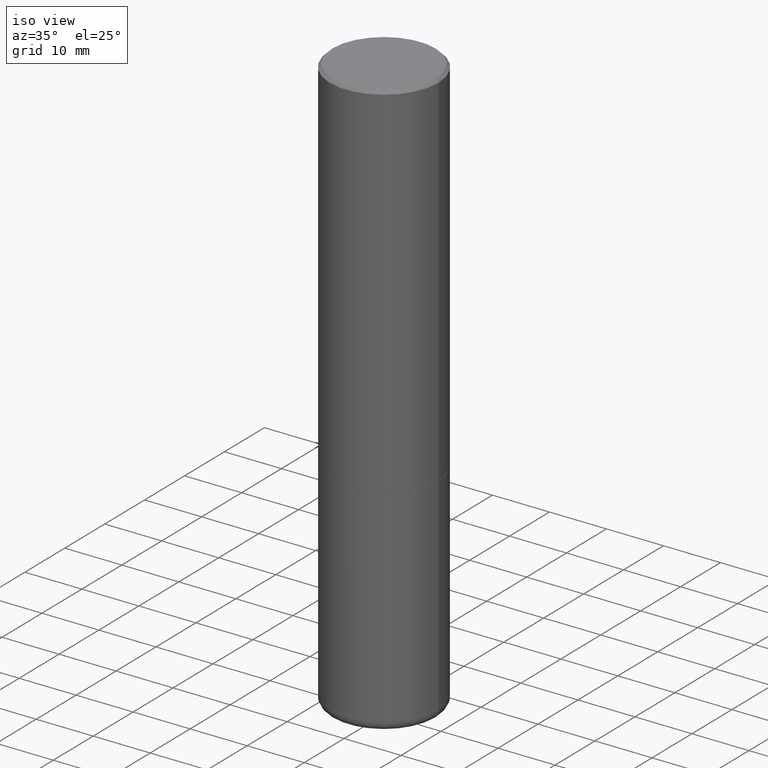
[diagram: clean part render]
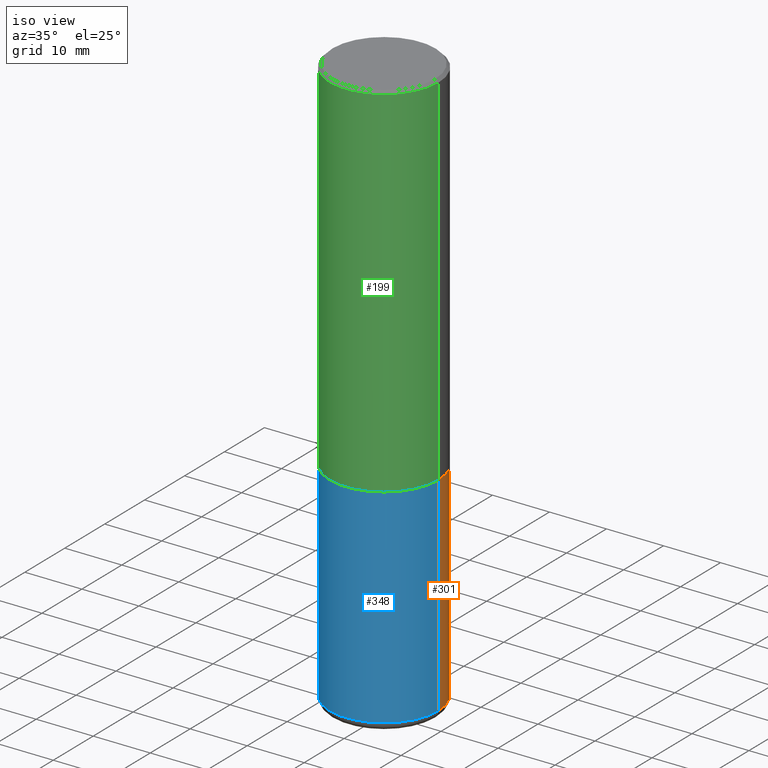
[diagram: same view with three faces highlighted in distinct colors, each labeled with its STEP entity id]
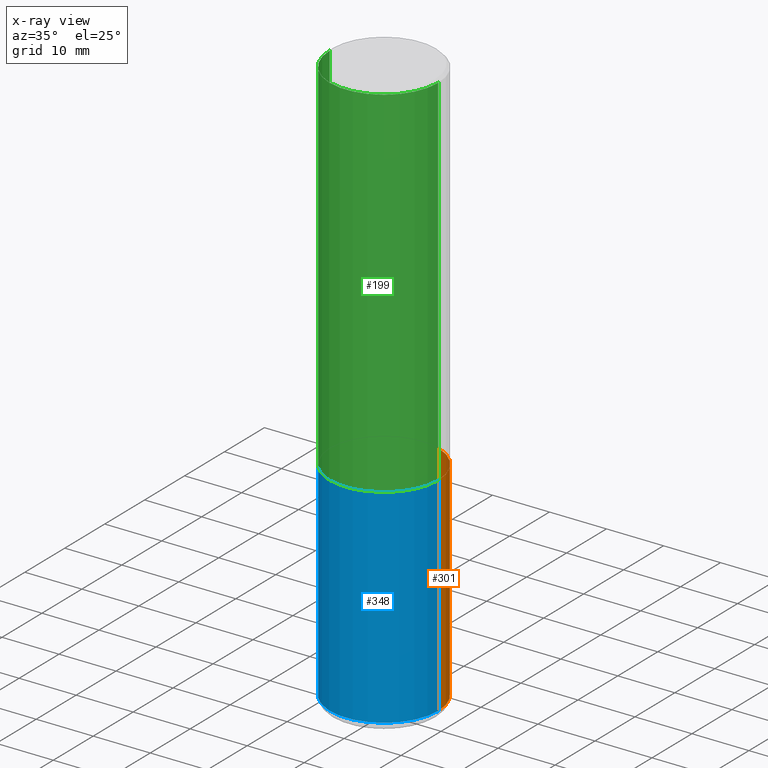
[diagram: x-ray of the same camera — body ghosted, the three highlighted faces saturated]
A machine part, iso view with three faces highlighted in distinct colors.
The next image is the same camera in x-ray (body ghosted, the three faces saturated) — at least one of them is partly hidden behind the body in this view.
Their STEP definitions:

[orange] entity #301 — the highlighted cylindrical surface (partial cylindrical patch) has radius 9.525 mm, axis along (-0, 0, 1).
#3 = CARTESIAN_POINT ( 'NONE',  ( 0.3749999999999999445, -2.618611004132349622E-15, 1.828566290923475642E-29 ) ) ;
#33 = CARTESIAN_POINT ( 'NONE',  ( -0.3749999999999999445, 2.664535259100375303E-15, -1.844600658845589318E-29 ) ) ;
#36 = LINE ( 'NONE', #33, #210 ) ;
#38 = CARTESIAN_POINT ( 'NONE',  ( 0.3750000000000001110, -1.637504747917434403E-14, -3.939999999999999947 ) ) ;
#40 = DIRECTION ( 'NONE',  ( -2.445468806185136597E-29, 3.491481338843145583E-15, 1.000000000000000000 ) ) ;
#54 = VERTEX_POINT ( 'NONE', #270 ) ;
#57 = CARTESIAN_POINT ( 'NONE',  ( 0.000000000000000000, 0.000000000000000000, 0.000000000000000000 ) ) ;
#60 = AXIS2_PLACEMENT_3D ( 'NONE', #127, #40, #226 ) ;
#62 = VERTEX_POINT ( 'NONE', #303 ) ;
#65 = DIRECTION ( 'NONE',  ( -2.445468806185136597E-29, 3.491481338843145583E-15, 1.000000000000000000 ) ) ;
#69 = LINE ( 'NONE', #3, #143 ) ;
#73 = ORIENTED_EDGE ( 'NONE', *, *, #169, .T. ) ;
#86 = AXIS2_PLACEMENT_3D ( 'NONE', #57, #65, #120 ) ;
#120 = DIRECTION ( 'NONE',  ( 1.000000000000000000, -6.982962677686266711E-15, 4.876176775795935793E-29 ) ) ;
#127 = CARTESIAN_POINT ( 'NONE',  ( 6.113672015462842613E-29, -8.728703347107864943E-15, -2.500000000000000000 ) ) ;
#143 = VECTOR ( 'NONE', #389, 39.37007874015748143 ) ;
#145 = ORIENTED_EDGE ( 'NONE', *, *, #384, .F. ) ;
#150 = CARTESIAN_POINT ( 'NONE',  ( -0.3750000000000001110, -1.109190121594161832E-14, -3.939999999999999947 ) ) ;
#151 = ORIENTED_EDGE ( 'NONE', *, *, #221, .F. ) ;
#153 = DIRECTION ( 'NONE',  ( 1.000000000000000000, -6.982962677686269077E-15, 0.000000000000000000 ) ) ;
#162 = AXIS2_PLACEMENT_3D ( 'NONE', #409, #345, #153 ) ;
#169 = EDGE_CURVE ( 'NONE', #319, #62, #36, .T. ) ;
#210 = VECTOR ( 'NONE', #287, 39.37007874015748143 ) ;
#221 = EDGE_CURVE ( 'NONE', #355, #54, #69, .T. ) ;
#226 = DIRECTION ( 'NONE',  ( 1.000000000000000000, -6.982962677686264344E-15, 0.000000000000000000 ) ) ;
#237 = ORIENTED_EDGE ( 'NONE', *, *, #332, .T. ) ;
#246 = CYLINDRICAL_SURFACE ( 'NONE', #86, 0.3749999999999999445 ) ;
#261 = CIRCLE ( 'NONE', #162, 0.3749999999999999445 ) ;
#270 = CARTESIAN_POINT ( 'NONE',  ( 0.3750000000000000555, -1.134731435124021338E-14, -2.500000000000000000 ) ) ;
#287 = DIRECTION ( 'NONE',  ( -2.445468806185136877E-29, 3.491481338843145188E-15, 1.000000000000000000 ) ) ;
#292 = EDGE_LOOP ( 'NONE', ( #237, #73, #145, #151 ) ) ;
#301 = ADVANCED_FACE ( 'NONE', ( #418 ), #246, .T. ) ;
#303 = CARTESIAN_POINT ( 'NONE',  ( -0.3750000000000000555, -8.578034651974553781E-15, -2.500000000000000000 ) ) ;
#319 = VERTEX_POINT ( 'NONE', #150 ) ;
#332 = EDGE_CURVE ( 'NONE', #355, #319, #261, .T. ) ;
#345 = DIRECTION ( 'NONE',  ( -2.445468806185136597E-29, 3.491481338843145583E-15, 1.000000000000000000 ) ) ;
#355 = VERTEX_POINT ( 'NONE', #38 ) ;
#384 = EDGE_CURVE ( 'NONE', #54, #62, #404, .T. ) ;
#389 = DIRECTION ( 'NONE',  ( -2.445468806185136877E-29, 3.491481338843145188E-15, 1.000000000000000000 ) ) ;
#404 = CIRCLE ( 'NONE', #60, 0.3750000000000000555 ) ;
#409 = CARTESIAN_POINT ( 'NONE',  ( 9.635147096369438236E-29, -1.375643647504199401E-14, -3.939999999999999947 ) ) ;
#418 = FACE_OUTER_BOUND ( 'NONE', #292, .T. ) ;

[blue] entity #348 — the highlighted cylindrical surface (partial cylindrical patch) has radius 9.525 mm, axis along (-0, 0, 1).
#1 = ORIENTED_EDGE ( 'NONE', *, *, #37, .T. ) ;
#3 = CARTESIAN_POINT ( 'NONE',  ( 0.3749999999999999445, -2.618611004132349622E-15, 1.828566290923475642E-29 ) ) ;
#21 = DIRECTION ( 'NONE',  ( -2.445468806185136597E-29, 3.491481338843145583E-15, 1.000000000000000000 ) ) ;
#33 = CARTESIAN_POINT ( 'NONE',  ( -0.3749999999999999445, 2.664535259100375303E-15, -1.844600658845589318E-29 ) ) ;
#36 = LINE ( 'NONE', #33, #210 ) ;
#37 = EDGE_CURVE ( 'NONE', #319, #355, #297, .T. ) ;
#38 = CARTESIAN_POINT ( 'NONE',  ( 0.3750000000000001110, -1.637504747917434403E-14, -3.939999999999999947 ) ) ;
#49 = AXIS2_PLACEMENT_3D ( 'NONE', #228, #50, #376 ) ;
#50 = DIRECTION ( 'NONE',  ( -2.445468806185136597E-29, 3.491481338843145583E-15, 1.000000000000000000 ) ) ;
#54 = VERTEX_POINT ( 'NONE', #270 ) ;
#55 = EDGE_LOOP ( 'NONE', ( #207, #1, #405, #215 ) ) ;
#62 = VERTEX_POINT ( 'NONE', #303 ) ;
#69 = LINE ( 'NONE', #3, #143 ) ;
#103 = CARTESIAN_POINT ( 'NONE',  ( 0.000000000000000000, 0.000000000000000000, 0.000000000000000000 ) ) ;
#143 = VECTOR ( 'NONE', #389, 39.37007874015748143 ) ;
#150 = CARTESIAN_POINT ( 'NONE',  ( -0.3750000000000001110, -1.109190121594161832E-14, -3.939999999999999947 ) ) ;
#166 = AXIS2_PLACEMENT_3D ( 'NONE', #103, #356, #321 ) ;
#169 = EDGE_CURVE ( 'NONE', #319, #62, #36, .T. ) ;
#174 = AXIS2_PLACEMENT_3D ( 'NONE', #183, #21, #282 ) ;
#183 = CARTESIAN_POINT ( 'NONE',  ( 6.113672015462842613E-29, -8.728703347107864943E-15, -2.500000000000000000 ) ) ;
#190 = FACE_OUTER_BOUND ( 'NONE', #55, .T. ) ;
#193 = CYLINDRICAL_SURFACE ( 'NONE', #166, 0.3749999999999999445 ) ;
#207 = ORIENTED_EDGE ( 'NONE', *, *, #169, .F. ) ;
#210 = VECTOR ( 'NONE', #287, 39.37007874015748143 ) ;
#215 = ORIENTED_EDGE ( 'NONE', *, *, #305, .F. ) ;
#221 = EDGE_CURVE ( 'NONE', #355, #54, #69, .T. ) ;
#228 = CARTESIAN_POINT ( 'NONE',  ( 9.635147096369438236E-29, -1.375643647504199401E-14, -3.939999999999999947 ) ) ;
#270 = CARTESIAN_POINT ( 'NONE',  ( 0.3750000000000000555, -1.134731435124021338E-14, -2.500000000000000000 ) ) ;
#282 = DIRECTION ( 'NONE',  ( 1.000000000000000000, -6.982962677686264344E-15, 0.000000000000000000 ) ) ;
#287 = DIRECTION ( 'NONE',  ( -2.445468806185136877E-29, 3.491481338843145188E-15, 1.000000000000000000 ) ) ;
#297 = CIRCLE ( 'NONE', #49, 0.3749999999999999445 ) ;
#303 = CARTESIAN_POINT ( 'NONE',  ( -0.3750000000000000555, -8.578034651974553781E-15, -2.500000000000000000 ) ) ;
#305 = EDGE_CURVE ( 'NONE', #62, #54, #344, .T. ) ;
#319 = VERTEX_POINT ( 'NONE', #150 ) ;
#321 = DIRECTION ( 'NONE',  ( 1.000000000000000000, -6.982962677686266711E-15, 4.876176775795935793E-29 ) ) ;
#344 = CIRCLE ( 'NONE', #174, 0.3750000000000000555 ) ;
#348 = ADVANCED_FACE ( 'NONE', ( #190 ), #193, .T. ) ;
#355 = VERTEX_POINT ( 'NONE', #38 ) ;
#356 = DIRECTION ( 'NONE',  ( -2.445468806185136597E-29, 3.491481338843145583E-15, 1.000000000000000000 ) ) ;
#376 = DIRECTION ( 'NONE',  ( 1.000000000000000000, -6.982962677686269077E-15, 0.000000000000000000 ) ) ;
#389 = DIRECTION ( 'NONE',  ( -2.445468806185136877E-29, 3.491481338843145188E-15, 1.000000000000000000 ) ) ;
#405 = ORIENTED_EDGE ( 'NONE', *, *, #221, .T. ) ;

[green] entity #199 — the highlighted cylindrical surface (partial cylindrical patch) has radius 9.525 mm, axis along (-0, 0, 1).
#2 = VERTEX_POINT ( 'NONE', #227 ) ;
#9 = DIRECTION ( 'NONE',  ( -2.445468806185136597E-29, 3.491481338843145583E-15, 1.000000000000000000 ) ) ;
#16 = ORIENTED_EDGE ( 'NONE', *, *, #264, .T. ) ;
#17 = ORIENTED_EDGE ( 'NONE', *, *, #242, .T. ) ;
#23 = LINE ( 'NONE', #94, #377 ) ;
#27 = DIRECTION ( 'NONE',  ( 1.000000000000000000, -6.982962677686266711E-15, 4.876176775795935793E-29 ) ) ;
#32 = DIRECTION ( 'NONE',  ( -2.445468806185136877E-29, 3.491481338843145188E-15, 1.000000000000000000 ) ) ;
#34 = CARTESIAN_POINT ( 'NONE',  ( -0.3750000000000001110, 2.548781377355487113E-15, -0.02000000000000008715 ) ) ;
#35 = CIRCLE ( 'NONE', #245, 0.3750000000000002776 ) ;
#75 = CYLINDRICAL_SURFACE ( 'NONE', #317, 0.3750000000000002220 ) ;
#89 = DIRECTION ( 'NONE',  ( -2.445468806185136877E-29, 3.491481338843145188E-15, 1.000000000000000000 ) ) ;
#94 = CARTESIAN_POINT ( 'NONE',  ( 0.3750000000000002220, -2.618611004132351594E-15, 1.828566290923477043E-29 ) ) ;
#106 = VECTOR ( 'NONE', #32, 39.37007874015748143 ) ;
#111 = CIRCLE ( 'NONE', #298, 0.3750000000000001110 ) ;
#129 = ORIENTED_EDGE ( 'NONE', *, *, #258, .F. ) ;
#155 = LINE ( 'NONE', #184, #106 ) ;
#181 = VERTEX_POINT ( 'NONE', #393 ) ;
#184 = CARTESIAN_POINT ( 'NONE',  ( -0.3750000000000002220, 2.664535259100377275E-15, -1.844600658845590719E-29 ) ) ;
#195 = FACE_OUTER_BOUND ( 'NONE', #347, .T. ) ;
#199 = ADVANCED_FACE ( 'NONE', ( #195 ), #75, .T. ) ;
#217 = CARTESIAN_POINT ( 'NONE',  ( 6.111226546656657010E-29, -8.725211865769021935E-15, -2.499000000000000110 ) ) ;
#219 = DIRECTION ( 'NONE',  ( 1.000000000000000000, -6.982962677686265922E-15, 0.000000000000000000 ) ) ;
#227 = CARTESIAN_POINT ( 'NONE',  ( 0.3750000000000002776, -1.134382286990137353E-14, -2.499000000000000110 ) ) ;
#230 = EDGE_CURVE ( 'NONE', #181, #366, #155, .T. ) ;
#242 = EDGE_CURVE ( 'NONE', #2, #374, #23, .T. ) ;
#245 = AXIS2_PLACEMENT_3D ( 'NONE', #217, #281, #350 ) ;
#258 = EDGE_CURVE ( 'NONE', #366, #374, #111, .T. ) ;
#264 = EDGE_CURVE ( 'NONE', #181, #2, #35, .T. ) ;
#279 = DIRECTION ( 'NONE',  ( -2.445468806185136597E-29, 3.491481338843145583E-15, 1.000000000000000000 ) ) ;
#281 = DIRECTION ( 'NONE',  ( -2.445468806185136597E-29, 3.491481338843145583E-15, 1.000000000000000000 ) ) ;
#298 = AXIS2_PLACEMENT_3D ( 'NONE', #383, #279, #219 ) ;
#306 = ORIENTED_EDGE ( 'NONE', *, *, #230, .F. ) ;
#317 = AXIS2_PLACEMENT_3D ( 'NONE', #329, #9, #27 ) ;
#329 = CARTESIAN_POINT ( 'NONE',  ( 0.000000000000000000, 0.000000000000000000, 0.000000000000000000 ) ) ;
#347 = EDGE_LOOP ( 'NONE', ( #306, #16, #17, #129 ) ) ;
#350 = DIRECTION ( 'NONE',  ( 1.000000000000000000, -6.982962677686265922E-15, 0.000000000000000000 ) ) ;
#366 = VERTEX_POINT ( 'NONE', #34 ) ;
#374 = VERTEX_POINT ( 'NONE', #387 ) ;
#377 = VECTOR ( 'NONE', #89, 39.37007874015748143 ) ;
#383 = CARTESIAN_POINT ( 'NONE',  ( 4.890937612370294178E-31, -6.982962677686321191E-17, -0.02000000000000008715 ) ) ;
#387 = CARTESIAN_POINT ( 'NONE',  ( 0.3750000000000001110, -2.642516375941188423E-15, -0.02000000000000008715 ) ) ;
#393 = CARTESIAN_POINT ( 'NONE',  ( -0.3750000000000002776, -1.732985487172563764E-15, -2.499000000000000110 ) ) ;